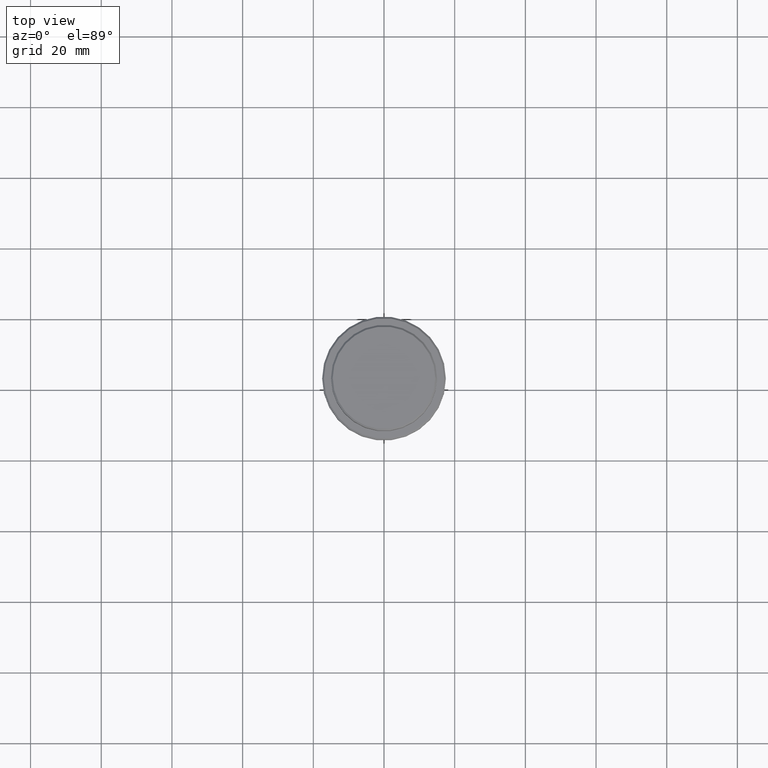
[diagram: clean part render]
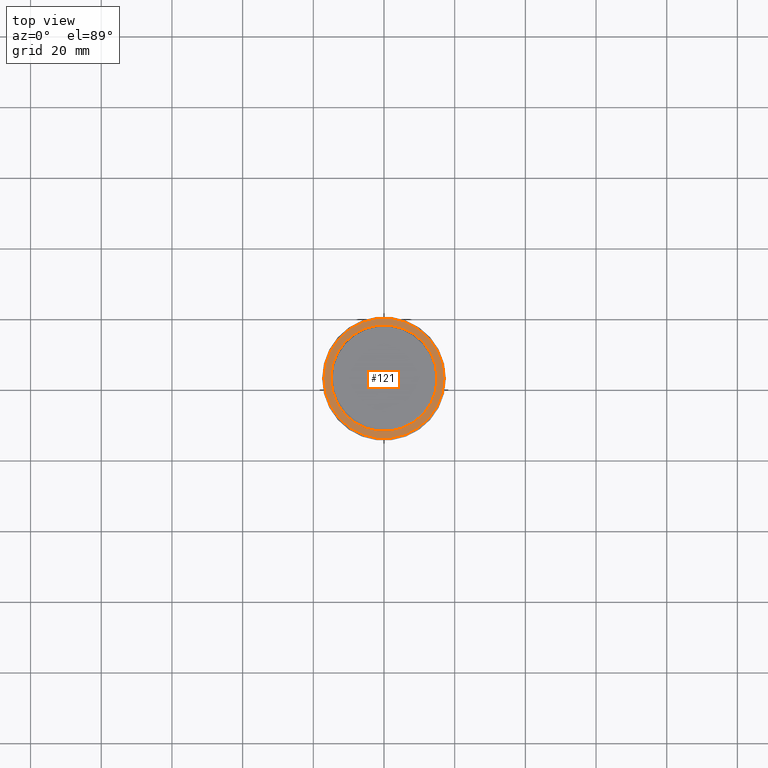
[diagram: same view with one face highlighted and labeled with its STEP entity id]
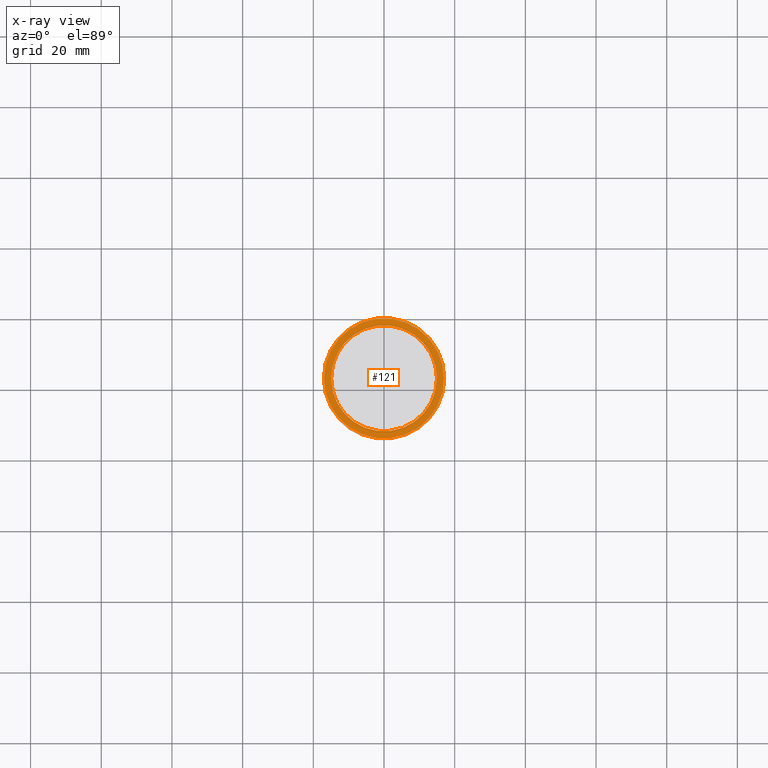
[diagram: x-ray of the same camera — body ghosted, the highlighted face saturated]
A machine part, top view. The second image highlights one B-rep face of the part: STEP entity #121.
The next image is the same camera in x-ray: the body ghosted, the highlighted face saturated — about 0% of this face is hidden behind the body in this view.
In plain terms, the highlighted planar face has unit normal (0, -0, 1).
Its self-contained STEP definition (entity closure, byte-faithful):
#14 = FACE_OUTER_BOUND ( 'NONE', #1008, .T. ) ;
#22 = CARTESIAN_POINT ( 'NONE',  ( 0.000000000000000000, 0.000000000000000000, -9.000000000000000000 ) ) ;
#34 = ORIENTED_EDGE ( 'NONE', *, *, #158, .T. ) ;
#63 = EDGE_CURVE ( 'NONE', #479, #215, #284, .T. ) ;
#111 = PLANE ( 'NONE',  #885 ) ;
#117 = DIRECTION ( 'NONE',  ( 1.000000000000000000, 0.000000000000000000, 0.000000000000000000 ) ) ;
#121 = ADVANCED_FACE ( 'NONE', ( #14, #1201 ), #111, .T. ) ;
#137 = EDGE_CURVE ( 'NONE', #609, #941, #1023, .T. ) ;
#148 = CARTESIAN_POINT ( 'NONE',  ( 14.99999999999999289, 0.000000000000000000, -9.000000000000000000 ) ) ;
#158 = EDGE_CURVE ( 'NONE', #215, #479, #605, .T. ) ;
#168 = EDGE_LOOP ( 'NONE', ( #504, #938 ) ) ;
#203 = CARTESIAN_POINT ( 'NONE',  ( 16.99999999999998579, 2.112515728529183278E-15, -9.000000000000000000 ) ) ;
#215 = VERTEX_POINT ( 'NONE', #1314 ) ;
#284 = CIRCLE ( 'NONE', #307, 16.99999999999998579 ) ;
#299 = DIRECTION ( 'NONE',  ( 0.000000000000000000, 0.000000000000000000, -1.000000000000000000 ) ) ;
#307 = AXIS2_PLACEMENT_3D ( 'NONE', #22, #1099, #663 ) ;
#313 = CARTESIAN_POINT ( 'NONE',  ( 0.000000000000000000, 0.000000000000000000, -9.000000000000000000 ) ) ;
#437 = CARTESIAN_POINT ( 'NONE',  ( 0.000000000000000000, 0.000000000000000000, -9.000000000000000000 ) ) ;
#457 = DIRECTION ( 'NONE',  ( 0.000000000000000000, -0.000000000000000000, 1.000000000000000000 ) ) ;
#479 = VERTEX_POINT ( 'NONE', #203 ) ;
#483 = AXIS2_PLACEMENT_3D ( 'NONE', #437, #1306, #117 ) ;
#504 = ORIENTED_EDGE ( 'NONE', *, *, #1280, .T. ) ;
#561 = CARTESIAN_POINT ( 'NONE',  ( 0.000000000000000000, 0.000000000000000000, -9.000000000000000000 ) ) ;
#605 = CIRCLE ( 'NONE', #483, 16.99999999999998579 ) ;
#609 = VERTEX_POINT ( 'NONE', #1341 ) ;
#623 = ORIENTED_EDGE ( 'NONE', *, *, #63, .T. ) ;
#640 = AXIS2_PLACEMENT_3D ( 'NONE', #313, #299, #858 ) ;
#663 = DIRECTION ( 'NONE',  ( 1.000000000000000000, 0.000000000000000000, 0.000000000000000000 ) ) ;
#781 = CARTESIAN_POINT ( 'NONE',  ( 0.000000000000000000, 14.49999999999999467, -9.000000000000000000 ) ) ;
#850 = CIRCLE ( 'NONE', #640, 14.99999999999999289 ) ;
#858 = DIRECTION ( 'NONE',  ( 1.000000000000000000, 0.000000000000000000, 0.000000000000000000 ) ) ;
#883 = DIRECTION ( 'NONE',  ( 0.000000000000000000, 0.000000000000000000, -1.000000000000000000 ) ) ;
#885 = AXIS2_PLACEMENT_3D ( 'NONE', #781, #457, #1299 ) ;
#938 = ORIENTED_EDGE ( 'NONE', *, *, #137, .T. ) ;
#941 = VERTEX_POINT ( 'NONE', #148 ) ;
#1008 = EDGE_LOOP ( 'NONE', ( #34, #623 ) ) ;
#1023 = CIRCLE ( 'NONE', #1352, 14.99999999999999289 ) ;
#1099 = DIRECTION ( 'NONE',  ( -0.000000000000000000, -0.000000000000000000, 1.000000000000000000 ) ) ;
#1201 = FACE_BOUND ( 'NONE', #168, .T. ) ;
#1280 = EDGE_CURVE ( 'NONE', #941, #609, #850, .T. ) ;
#1299 = DIRECTION ( 'NONE',  ( 1.000000000000000000, 0.000000000000000000, 0.000000000000000000 ) ) ;
#1306 = DIRECTION ( 'NONE',  ( -0.000000000000000000, -0.000000000000000000, 1.000000000000000000 ) ) ;
#1314 = CARTESIAN_POINT ( 'NONE',  ( -16.99999999999998579, 0.000000000000000000, -9.000000000000000000 ) ) ;
#1318 = DIRECTION ( 'NONE',  ( 1.000000000000000000, 0.000000000000000000, 0.000000000000000000 ) ) ;
#1341 = CARTESIAN_POINT ( 'NONE',  ( -14.99999999999999289, 1.836970198721028800E-15, -9.000000000000000000 ) ) ;
#1352 = AXIS2_PLACEMENT_3D ( 'NONE', #561, #883, #1318 ) ;